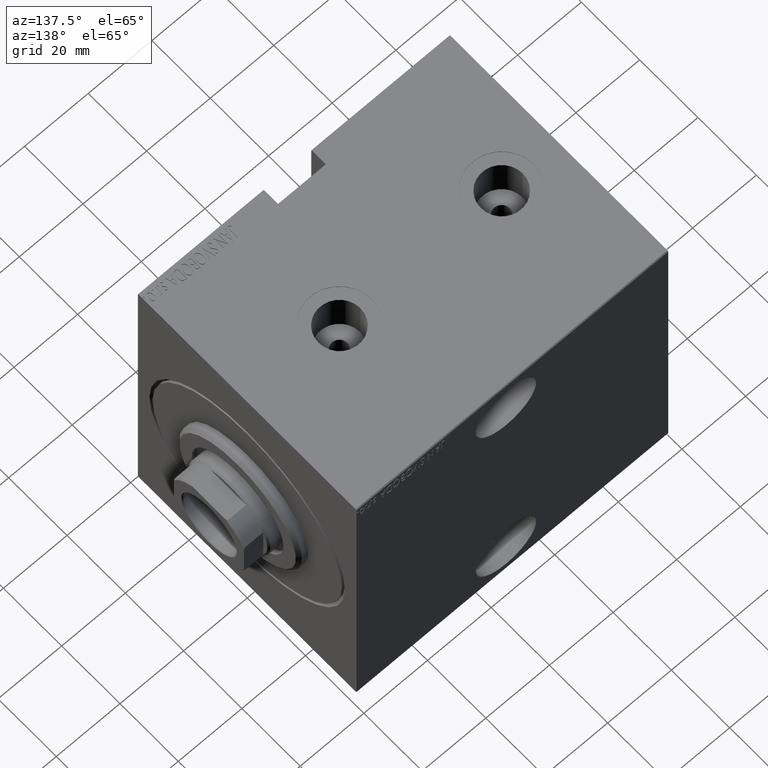
[diagram: clean part render]
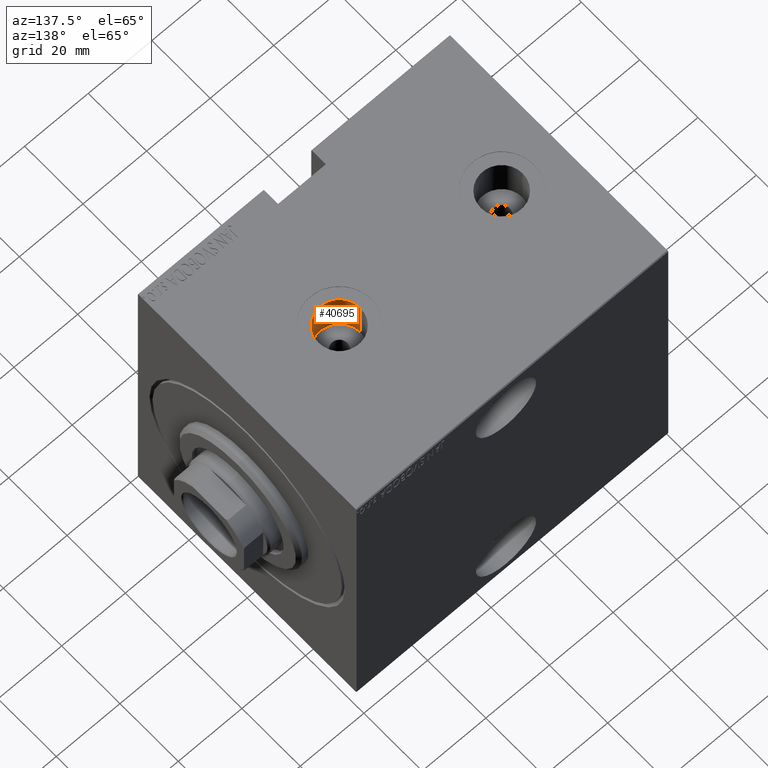
[diagram: same view with one face highlighted and labeled with its STEP entity id]
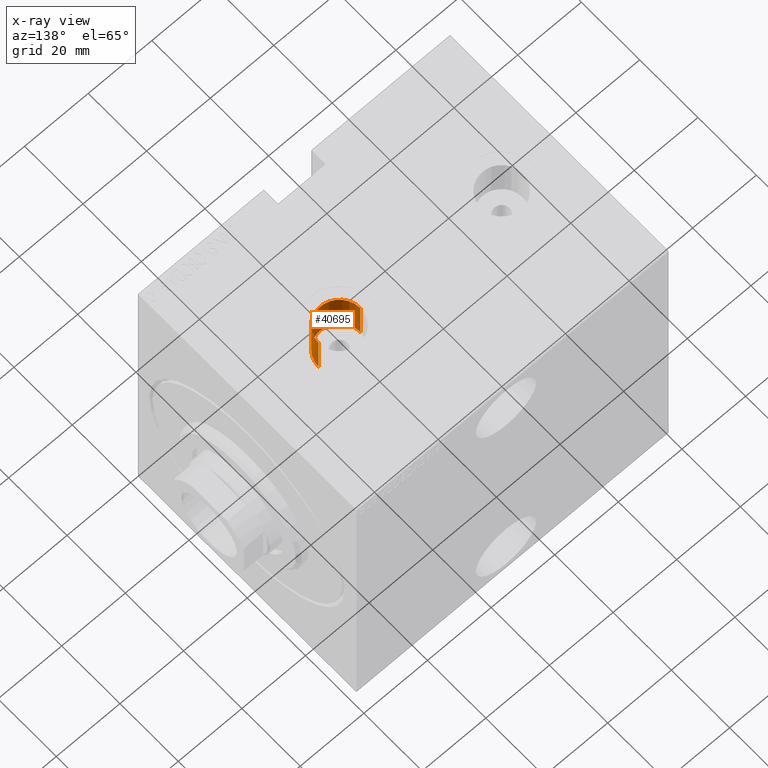
[diagram: x-ray of the same camera — body ghosted, the highlighted face saturated]
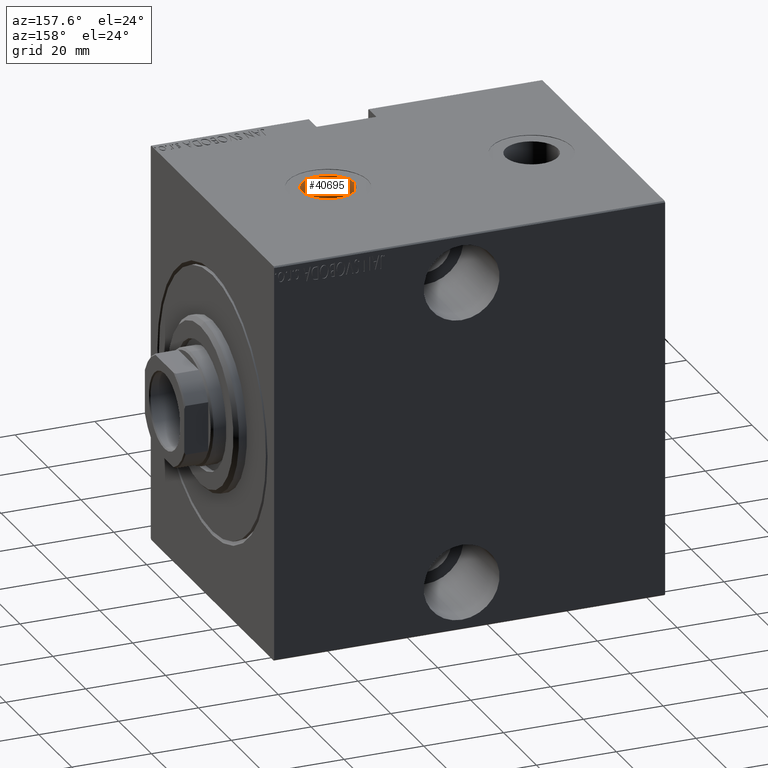
[diagram: same view with one face highlighted and labeled with its STEP entity id]
A machine part, auxiliary view. The second image highlights one B-rep face of the part: STEP entity #40695.
The next image is the same camera in x-ray: the body ghosted, the highlighted face saturated — about 0% of this face is hidden behind the body in this view.
A second angle (auxiliary view) of the same face is appended — the face is thin or edge-on in the first view.
In plain terms, the highlighted cylindrical surface (edge-blend (fillet) strip) has radius 6.58 mm, axis along (0, 0, 1).
Its self-contained STEP definition (entity closure, byte-faithful):
#1005 = VERTEX_POINT ( 'NONE', #31603 ) ;
#3260 = CARTESIAN_POINT ( 'NONE',  ( 22.42000000000000171, -8.446040944704017913E-15, 36.74000000000000909 ) ) ;
#4325 = CARTESIAN_POINT ( 'NONE',  ( 29.00000000000000000, -9.251858538542975377E-15, 36.74000000000000909 ) ) ;
#5480 = DIRECTION ( 'NONE',  ( -0.000000000000000000, -0.000000000000000000, 1.000000000000000000 ) ) ;
#6390 = CARTESIAN_POINT ( 'NONE',  ( 22.42000000000000171, -8.446040944704017913E-15, 49.90000000000000568 ) ) ;
#7073 = CIRCLE ( 'NONE', #24839, 6.579999999999999183 ) ;
#7654 = DIRECTION ( 'NONE',  ( 0.000000000000000000, 0.000000000000000000, 1.000000000000000000 ) ) ;
#9944 = CARTESIAN_POINT ( 'NONE',  ( 29.00000000000000000, -9.251858538542975377E-15, 49.90000000000000568 ) ) ;
#10459 = EDGE_CURVE ( 'NONE', #12241, #34809, #21182, .T. ) ;
#11362 = EDGE_CURVE ( 'NONE', #12241, #1005, #37970, .T. ) ;
#11711 = DIRECTION ( 'NONE',  ( 1.000000000000000000, 0.000000000000000000, 0.000000000000000000 ) ) ;
#12052 = EDGE_CURVE ( 'NONE', #34809, #20087, #30083, .T. ) ;
#12241 = VERTEX_POINT ( 'NONE', #42754 ) ;
#14546 = DIRECTION ( 'NONE',  ( 1.000000000000000000, 0.000000000000000000, 0.000000000000000000 ) ) ;
#18381 = CYLINDRICAL_SURFACE ( 'NONE', #20334, 6.579999999999999183 ) ;
#19254 = EDGE_CURVE ( 'NONE', #1005, #20087, #7073, .T. ) ;
#19747 = DIRECTION ( 'NONE',  ( 0.000000000000000000, 0.000000000000000000, 1.000000000000000000 ) ) ;
#20087 = VERTEX_POINT ( 'NONE', #6390 ) ;
#20242 = ORIENTED_EDGE ( 'NONE', *, *, #12052, .F. ) ;
#20334 = AXIS2_PLACEMENT_3D ( 'NONE', #28626, #5480, #11711 ) ;
#21024 = CARTESIAN_POINT ( 'NONE',  ( 35.57999999999999829, -9.251858538542975377E-15, 36.74000000000000909 ) ) ;
#21182 = CIRCLE ( 'NONE', #41119, 6.579999999999999183 ) ;
#21944 = ORIENTED_EDGE ( 'NONE', *, *, #10459, .F. ) ;
#22394 = FACE_OUTER_BOUND ( 'NONE', #43091, .T. ) ;
#24839 = AXIS2_PLACEMENT_3D ( 'NONE', #9944, #19747, #40257 ) ;
#26874 = ORIENTED_EDGE ( 'NONE', *, *, #11362, .T. ) ;
#28626 = CARTESIAN_POINT ( 'NONE',  ( 29.00000000000000000, -9.251858538542975377E-15, 36.74000000000000909 ) ) ;
#30083 = LINE ( 'NONE', #30303, #36228 ) ;
#30303 = CARTESIAN_POINT ( 'NONE',  ( 22.42000000000000171, -8.446040944704017913E-15, 36.74000000000000909 ) ) ;
#31603 = CARTESIAN_POINT ( 'NONE',  ( 35.57999999999999829, -9.251858538542975377E-15, 49.90000000000000568 ) ) ;
#34094 = DIRECTION ( 'NONE',  ( -0.000000000000000000, -0.000000000000000000, 1.000000000000000000 ) ) ;
#34632 = DIRECTION ( 'NONE',  ( -0.000000000000000000, -0.000000000000000000, 1.000000000000000000 ) ) ;
#34809 = VERTEX_POINT ( 'NONE', #3260 ) ;
#36228 = VECTOR ( 'NONE', #34094, 1000.000000000000000 ) ;
#37970 = LINE ( 'NONE', #21024, #41878 ) ;
#40257 = DIRECTION ( 'NONE',  ( 1.000000000000000000, 0.000000000000000000, 0.000000000000000000 ) ) ;
#40439 = ORIENTED_EDGE ( 'NONE', *, *, #19254, .T. ) ;
#40695 = ADVANCED_FACE ( 'NONE', ( #22394 ), #18381, .F. ) ;
#41119 = AXIS2_PLACEMENT_3D ( 'NONE', #4325, #7654, #14546 ) ;
#41878 = VECTOR ( 'NONE', #34632, 1000.000000000000000 ) ;
#42754 = CARTESIAN_POINT ( 'NONE',  ( 35.57999999999999829, -9.251858538542975377E-15, 36.74000000000000909 ) ) ;
#43091 = EDGE_LOOP ( 'NONE', ( #20242, #21944, #26874, #40439 ) ) ;